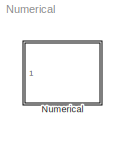
MODEL Numerical
KIND library
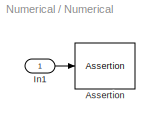
BLOCK [SubSystem] Numerical
  FunctionWithSeparateData = off
  MaskHideContents = off
  MinAlgLoopOccurrences = off
  Opaque = off
  Ports = [1]
  PropExecContextOutsideSubsystem = off
  RTWSystemCode = Auto
  RequestExecContextInheritance = off
  SID = 2
  TreatAsAtomicUnit = on
BLOCK [Assertion] Numerical/Assertion
  SID = 1
  StopWhenAssertionFail = off
BLOCK [Inport] Numerical/In1
  IconDisplay = Port number
  SID = 3
LINE Numerical/In1:1 -> Numerical/Assertion:1
